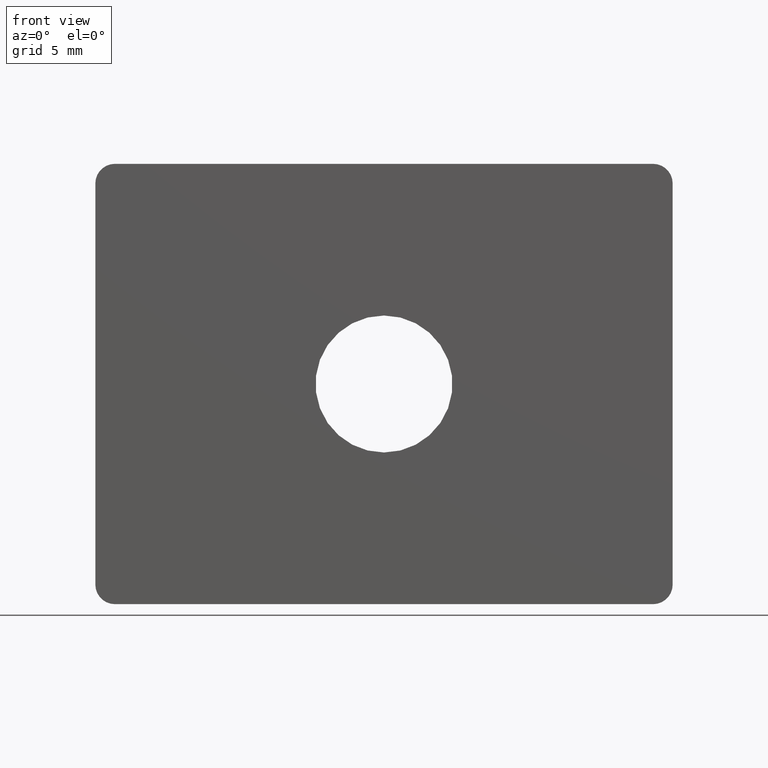
[diagram: clean part render]
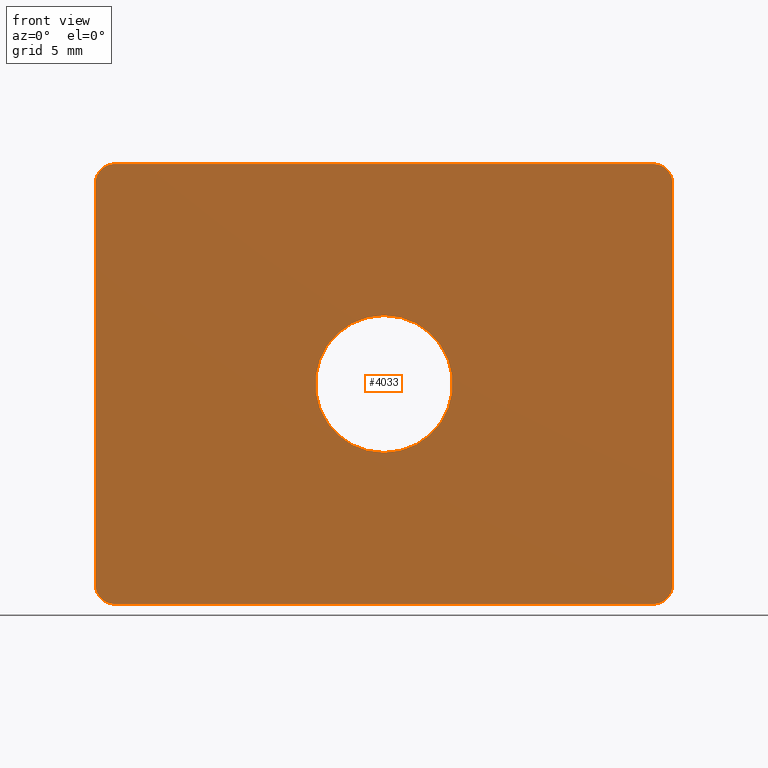
[diagram: same view with one face highlighted and labeled with its STEP entity id]
A machine part, front view. The second image highlights one B-rep face of the part: STEP entity #4033.
In plain terms, the highlighted planar face has unit normal (0, -1, 0).
Its self-contained STEP definition (entity closure, byte-faithful):
#34 = LINE ( 'NONE', #10820, #751 ) ;
#161 = DIRECTION ( 'NONE',  ( 0.0000000000000000000, 0.0000000000000000000, -1.000000000000000000 ) ) ;
#544 = EDGE_CURVE ( 'NONE', #5123, #6596, #34, .T. ) ;
#621 = CARTESIAN_POINT ( 'NONE',  ( 4.286263797015736100E-016, 0.0000000000000000000, 3.499999999999999600 ) ) ;
#660 = VERTEX_POINT ( 'NONE', #11027 ) ;
#751 = VECTOR ( 'NONE', #10159, 1000.000000000000000 ) ;
#783 = ORIENTED_EDGE ( 'NONE', *, *, #3478, .F. ) ;
#796 = ORIENTED_EDGE ( 'NONE', *, *, #11048, .T. ) ;
#822 = DIRECTION ( 'NONE',  ( 0.0000000000000000000, 1.000000000000000000, 0.0000000000000000000 ) ) ;
#923 = CIRCLE ( 'NONE', #4283, 1.000000000000000900 ) ;
#959 = DIRECTION ( 'NONE',  ( 0.0000000000000000000, 0.0000000000000000000, -1.000000000000000000 ) ) ;
#1024 = ORIENTED_EDGE ( 'NONE', *, *, #8447, .F. ) ;
#1069 = LINE ( 'NONE', #11060, #7385 ) ;
#1676 = AXIS2_PLACEMENT_3D ( 'NONE', #12319, #11500, #959 ) ;
#1698 = CARTESIAN_POINT ( 'NONE',  ( 14.75000000000000000, 0.0000000000000000000, 11.24999999999999800 ) ) ;
#1744 = VERTEX_POINT ( 'NONE', #10787 ) ;
#1887 = CARTESIAN_POINT ( 'NONE',  ( 0.0000000000000000000, 0.0000000000000000000, 0.0000000000000000000 ) ) ;
#1903 = DIRECTION ( 'NONE',  ( 0.0000000000000000000, -1.000000000000000000, 0.0000000000000000000 ) ) ;
#2052 = CARTESIAN_POINT ( 'NONE',  ( -13.74999999999999800, 0.0000000000000000000, 11.24999999999999800 ) ) ;
#2150 = EDGE_CURVE ( 'NONE', #4661, #1744, #8222, .T. ) ;
#2292 = EDGE_LOOP ( 'NONE', ( #1024, #11392, #783, #796, #3098, #9171, #7375, #6831 ) ) ;
#2451 = EDGE_LOOP ( 'NONE', ( #10640, #6481 ) ) ;
#2669 = DIRECTION ( 'NONE',  ( -1.000000000000000000, -0.0000000000000000000, 3.528251137579946600E-016 ) ) ;
#2670 = DIRECTION ( 'NONE',  ( -1.541976423090495400E-016, 0.0000000000000000000, -1.000000000000000000 ) ) ;
#2878 = EDGE_CURVE ( 'NONE', #7425, #3267, #9695, .T. ) ;
#3098 = ORIENTED_EDGE ( 'NONE', *, *, #7344, .F. ) ;
#3267 = VERTEX_POINT ( 'NONE', #11640 ) ;
#3331 = DIRECTION ( 'NONE',  ( 0.0000000000000000000, -1.000000000000000000, -0.0000000000000000000 ) ) ;
#3478 = EDGE_CURVE ( 'NONE', #7911, #3267, #4483, .T. ) ;
#3531 = VECTOR ( 'NONE', #2670, 1000.000000000000000 ) ;
#3578 = DIRECTION ( 'NONE',  ( 0.0000000000000000000, 1.000000000000000000, 0.0000000000000000000 ) ) ;
#3617 = AXIS2_PLACEMENT_3D ( 'NONE', #1887, #822, #3741 ) ;
#3741 = DIRECTION ( 'NONE',  ( 0.0000000000000000000, 0.0000000000000000000, 1.000000000000000000 ) ) ;
#3782 = CARTESIAN_POINT ( 'NONE',  ( -14.75000000000000000, 0.0000000000000000000, 10.24999999999999800 ) ) ;
#4033 = ADVANCED_FACE ( 'NONE', ( #11288, #10121 ), #5774, .T. ) ;
#4089 = AXIS2_PLACEMENT_3D ( 'NONE', #12061, #3578, #10217 ) ;
#4209 = CARTESIAN_POINT ( 'NONE',  ( -13.74999999999999800, 0.0000000000000000000, 10.24999999999999800 ) ) ;
#4283 = AXIS2_PLACEMENT_3D ( 'NONE', #4209, #7171, #5148 ) ;
#4286 = DIRECTION ( 'NONE',  ( 0.0000000000000000000, 0.0000000000000000000, -1.000000000000000000 ) ) ;
#4420 = EDGE_CURVE ( 'NONE', #1744, #4661, #6257, .T. ) ;
#4483 = LINE ( 'NONE', #7551, #6851 ) ;
#4661 = VERTEX_POINT ( 'NONE', #621 ) ;
#5123 = VERTEX_POINT ( 'NONE', #2052 ) ;
#5148 = DIRECTION ( 'NONE',  ( 0.0000000000000000000, 0.0000000000000000000, -1.000000000000000000 ) ) ;
#5505 = AXIS2_PLACEMENT_3D ( 'NONE', #7751, #1903, #161 ) ;
#5519 = CIRCLE ( 'NONE', #7328, 1.000000000000000900 ) ;
#5539 = CARTESIAN_POINT ( 'NONE',  ( 13.74999999999999800, 0.0000000000000000000, 11.24999999999999800 ) ) ;
#5639 = EDGE_CURVE ( 'NONE', #7738, #6596, #9055, .T. ) ;
#5774 = PLANE ( 'NONE',  #5505 ) ;
#6257 = CIRCLE ( 'NONE', #3617, 3.499999999999999600 ) ;
#6293 = CARTESIAN_POINT ( 'NONE',  ( 14.75000000000000000, 0.0000000000000000000, 10.24999999999999800 ) ) ;
#6481 = ORIENTED_EDGE ( 'NONE', *, *, #2150, .T. ) ;
#6596 = VERTEX_POINT ( 'NONE', #5539 ) ;
#6636 = LINE ( 'NONE', #1698, #3531 ) ;
#6831 = ORIENTED_EDGE ( 'NONE', *, *, #8069, .T. ) ;
#6851 = VECTOR ( 'NONE', #2669, 1000.000000000000000 ) ;
#7171 = DIRECTION ( 'NONE',  ( 0.0000000000000000000, -1.000000000000000000, -0.0000000000000000000 ) ) ;
#7216 = CARTESIAN_POINT ( 'NONE',  ( 13.74999999999999500, 0.0000000000000000000, -10.25000000000000200 ) ) ;
#7328 = AXIS2_PLACEMENT_3D ( 'NONE', #7216, #10096, #11044 ) ;
#7344 = EDGE_CURVE ( 'NONE', #7738, #660, #6636, .T. ) ;
#7375 = ORIENTED_EDGE ( 'NONE', *, *, #544, .F. ) ;
#7385 = VECTOR ( 'NONE', #10114, 1000.000000000000000 ) ;
#7425 = VERTEX_POINT ( 'NONE', #9780 ) ;
#7551 = CARTESIAN_POINT ( 'NONE',  ( -14.75000000000000400, 0.0000000000000000000, -11.24999999999999100 ) ) ;
#7703 = CARTESIAN_POINT ( 'NONE',  ( 13.74999999999999500, 0.0000000000000000000, -11.25000000000000200 ) ) ;
#7738 = VERTEX_POINT ( 'NONE', #6293 ) ;
#7751 = CARTESIAN_POINT ( 'NONE',  ( 0.0000000000000000000, 0.0000000000000000000, 0.0000000000000000000 ) ) ;
#7911 = VERTEX_POINT ( 'NONE', #7703 ) ;
#8069 = EDGE_CURVE ( 'NONE', #5123, #9609, #923, .T. ) ;
#8222 = CIRCLE ( 'NONE', #4089, 3.499999999999999600 ) ;
#8447 = EDGE_CURVE ( 'NONE', #7425, #9609, #1069, .T. ) ;
#9017 = CARTESIAN_POINT ( 'NONE',  ( 13.74999999999999800, 0.0000000000000000000, 10.24999999999999800 ) ) ;
#9055 = CIRCLE ( 'NONE', #10523, 1.000000000000000900 ) ;
#9171 = ORIENTED_EDGE ( 'NONE', *, *, #5639, .T. ) ;
#9609 = VERTEX_POINT ( 'NONE', #3782 ) ;
#9695 = CIRCLE ( 'NONE', #1676, 0.9999999999999991100 ) ;
#9780 = CARTESIAN_POINT ( 'NONE',  ( -14.75000000000000400, 0.0000000000000000000, -10.24999999999998600 ) ) ;
#10096 = DIRECTION ( 'NONE',  ( 0.0000000000000000000, -1.000000000000000000, -0.0000000000000000000 ) ) ;
#10114 = DIRECTION ( 'NONE',  ( 1.541976423090496100E-016, -0.0000000000000000000, 1.000000000000000000 ) ) ;
#10121 = FACE_BOUND ( 'NONE', #2451, .T. ) ;
#10159 = DIRECTION ( 'NONE',  ( 1.000000000000000000, 0.0000000000000000000, 0.0000000000000000000 ) ) ;
#10217 = DIRECTION ( 'NONE',  ( 0.0000000000000000000, 0.0000000000000000000, 1.000000000000000000 ) ) ;
#10523 = AXIS2_PLACEMENT_3D ( 'NONE', #9017, #3331, #4286 ) ;
#10640 = ORIENTED_EDGE ( 'NONE', *, *, #4420, .T. ) ;
#10787 = CARTESIAN_POINT ( 'NONE',  ( 0.0000000000000000000, 0.0000000000000000000, -3.499999999999999600 ) ) ;
#10820 = CARTESIAN_POINT ( 'NONE',  ( -14.75000000000000000, 0.0000000000000000000, 11.24999999999999800 ) ) ;
#11027 = CARTESIAN_POINT ( 'NONE',  ( 14.74999999999999600, 0.0000000000000000000, -10.24999999999999300 ) ) ;
#11044 = DIRECTION ( 'NONE',  ( 0.0000000000000000000, 0.0000000000000000000, -1.000000000000000000 ) ) ;
#11048 = EDGE_CURVE ( 'NONE', #7911, #660, #5519, .T. ) ;
#11060 = CARTESIAN_POINT ( 'NONE',  ( -14.75000000000000000, 0.0000000000000000000, 11.24999999999999800 ) ) ;
#11288 = FACE_OUTER_BOUND ( 'NONE', #2292, .T. ) ;
#11392 = ORIENTED_EDGE ( 'NONE', *, *, #2878, .T. ) ;
#11500 = DIRECTION ( 'NONE',  ( 0.0000000000000000000, -1.000000000000000000, -0.0000000000000000000 ) ) ;
#11640 = CARTESIAN_POINT ( 'NONE',  ( -13.75000000000000200, 0.0000000000000000000, -11.24999999999999100 ) ) ;
#12061 = CARTESIAN_POINT ( 'NONE',  ( 0.0000000000000000000, 0.0000000000000000000, 0.0000000000000000000 ) ) ;
#12319 = CARTESIAN_POINT ( 'NONE',  ( -13.75000000000000200, 0.0000000000000000000, -10.24999999999999300 ) ) ;